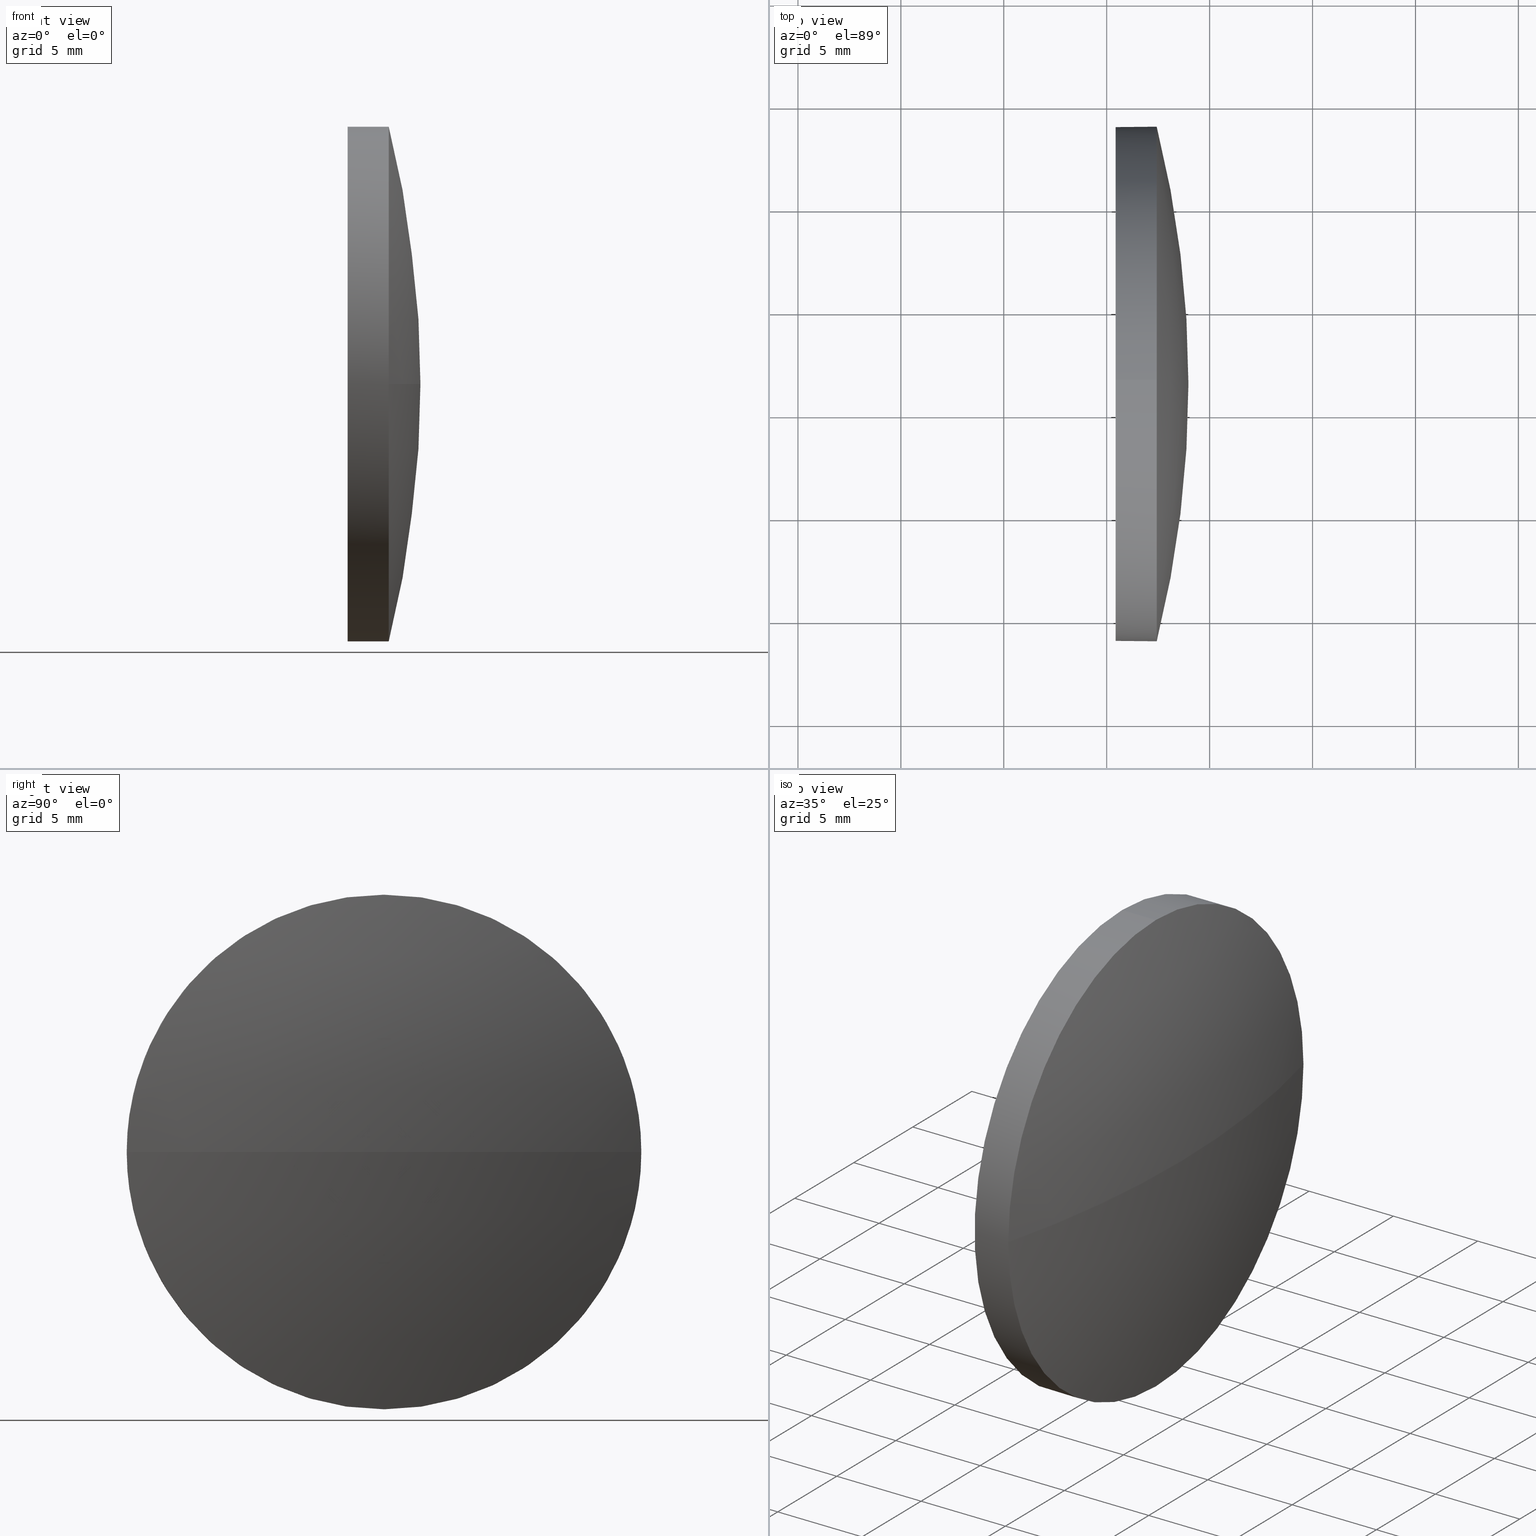
[diagram: canonical four-view strip — front | top / right | iso, engineering-drawing reading convention]
A machine part, canonical four-view strip (front | top / right | iso — engineering-drawing reading convention). The complete STEP part file that produces these views, byte-faithful:
ISO-10303-21;
HEADER;
FILE_DESCRIPTION (( 'STEP AP214' ),
    '1' );
FILE_NAME ('100044.STEP',
    '2019-04-29T08:28:07',
    ( '' ),
    ( '' ),
    'SwSTEP 2.0',
    'SolidWorks 2016',
    '' );
FILE_SCHEMA (( 'AUTOMOTIVE_DESIGN' ));
ENDSEC;

DATA;
#1 = ORIENTED_EDGE ( 'NONE', *, *, #94, .F. ) ;
#2 = EDGE_CURVE ( 'NONE', #172, #102, #81, .T. ) ;
#3 = CIRCLE ( 'NONE', #48, 12.50000000000000400 ) ;
#4 = ORIENTED_EDGE ( 'NONE', *, *, #120, .T. ) ;
#5 = PRODUCT_DEFINITION ( 'δ֪', '', #19, #141 ) ;
#6 = DIRECTION ( 'NONE',  ( -1.000000000000000000, -0.0000000000000000000, -0.0000000000000000000 ) ) ;
#7 = CARTESIAN_POINT ( 'NONE',  ( 413.9707510212638200, 36.41570885204537000, 0.0000000000000000000 ) ) ;
#8 = CIRCLE ( 'NONE', #9, 12.50000000000000400 ) ;
#9 = AXIS2_PLACEMENT_3D ( 'NONE', #165, #100, #36 ) ;
#10 = FILL_AREA_STYLE ('',( #178 ) ) ;
#11 = VERTEX_POINT ( 'NONE', #134 ) ;
#12 = EDGE_CURVE ( 'NONE', #167, #11, #3, .T. ) ;
#13 = FILL_AREA_STYLE_COLOUR ( '', #42 ) ;
#14 = APPLICATION_PROTOCOL_DEFINITION ( 'draft international standard', 'automotive_design', 1998, #76 ) ;
#15 = UNCERTAINTY_MEASURE_WITH_UNIT (LENGTH_MEASURE( 1.000000000000000100E-005 ), #138, 'distance_accuracy_value', 'NONE');
#16 = ORIENTED_EDGE ( 'NONE', *, *, #12, .F. ) ;
#17 = ADVANCED_FACE ( 'NONE', ( #130 ), #132, .F. ) ;
#18 = COLOUR_RGB ( '',1.000000000000000000, 1.000000000000000000, 1.000000000000000000 ) ;
#19 = PRODUCT_DEFINITION_FORMATION_WITH_SPECIFIED_SOURCE ( '�κ�', '', #158, .NOT_KNOWN. ) ;
#20 = CIRCLE ( 'NONE', #64, 12.50000000000000400 ) ;
#21 = STYLED_ITEM ( 'NONE', ( #105 ), #118 ) ;
#22 = FACE_OUTER_BOUND ( 'NONE', #136, .T. ) ;
#23 = AXIS2_PLACEMENT_3D ( 'NONE', #122, #67, #159 ) ;
#24 = SURFACE_SIDE_STYLE ('',( #114 ) ) ;
#25 = PRODUCT_RELATED_PRODUCT_CATEGORY ( 'part', '', ( #158 ) ) ;
#26 = DIRECTION ( 'NONE',  ( 0.0000000000000000000, 1.000000000000000000, 1.224646799147353200E-016 ) ) ;
#27 = ORIENTED_EDGE ( 'NONE', *, *, #113, .T. ) ;
#28 =( GEOMETRIC_REPRESENTATION_CONTEXT ( 3 ) GLOBAL_UNCERTAINTY_ASSIGNED_CONTEXT ( ( #78 ) ) GLOBAL_UNIT_ASSIGNED_CONTEXT ( ( #39, #56, #166 ) ) REPRESENTATION_CONTEXT ( 'NONE', 'WORKASPACE' ) );
#29 = LINE ( 'NONE', #35, #179 ) ;
#30 = ORIENTED_EDGE ( 'NONE', *, *, #2, .T. ) ;
#31 = DIRECTION ( 'NONE',  ( 0.0000000000000000000, 0.0000000000000000000, 1.000000000000000000 ) ) ;
#32 = DIRECTION ( 'NONE',  ( -1.000000000000000000, -0.0000000000000000000, -0.0000000000000000000 ) ) ;
#33 = DIRECTION ( 'NONE',  ( 0.0000000000000000000, 1.000000000000000000, 0.0000000000000000000 ) ) ;
#34 = PRESENTATION_STYLE_ASSIGNMENT (( #43 ) ) ;
#35 = CARTESIAN_POINT ( 'NONE',  ( 405.6887197793739100, 36.41570885204544100, -12.50000000000000400 ) ) ;
#36 = DIRECTION ( 'NONE',  ( 0.0000000000000000000, 0.0000000000000000000, 1.000000000000000000 ) ) ;
#37 = FACE_OUTER_BOUND ( 'NONE', #170, .T. ) ;
#38 = EDGE_CURVE ( 'NONE', #172, #61, #137, .T. ) ;
#39 =( LENGTH_UNIT ( ) NAMED_UNIT ( * ) SI_UNIT ( .MILLI., .METRE. ) );
#40 = ORIENTED_EDGE ( 'NONE', *, *, #174, .T. ) ;
#41 = AXIS2_PLACEMENT_3D ( 'NONE', #147, #72, #33 ) ;
#42 = COLOUR_RGB ( '',1.000000000000000000, 1.000000000000000000, 1.000000000000000000 ) ;
#43 = SURFACE_STYLE_USAGE ( .BOTH. , #127 ) ;
#44 = SPHERICAL_SURFACE ( 'NONE', #41, 51.50051948051955000 ) ;
#45 = ORIENTED_EDGE ( 'NONE', *, *, #186, .T. ) ;
#46 = DIRECTION ( 'NONE',  ( -1.000000000000000000, -0.0000000000000000000, -0.0000000000000000000 ) ) ;
#47 = ORIENTED_EDGE ( 'NONE', *, *, #113, .F. ) ;
#48 = AXIS2_PLACEMENT_3D ( 'NONE', #145, #97, #31 ) ;
#49 = CIRCLE ( 'NONE', #85, 12.50000000000000400 ) ;
#50 = CARTESIAN_POINT ( 'NONE',  ( 412.4307510212638000, 48.91570885204540500, 0.0000000000000000000 ) ) ;
#51 = AXIS2_PLACEMENT_3D ( 'NONE', #99, #135, #112 ) ;
#52 = CARTESIAN_POINT ( 'NONE',  ( 410.4307510212638000, 36.41570885204544100, 12.50000000000000400 ) ) ;
#53 = EDGE_CURVE ( 'NONE', #143, #102, #96, .T. ) ;
#54 = DIRECTION ( 'NONE',  ( -1.000000000000000000, -0.0000000000000000000, -0.0000000000000000000 ) ) ;
#55 = EDGE_LOOP ( 'NONE', ( #4, #144 ) ) ;
#56 =( NAMED_UNIT ( * ) PLANE_ANGLE_UNIT ( ) SI_UNIT ( $, .RADIAN. ) );
#57 = CLOSED_SHELL ( 'NONE', ( #152, #93, #63, #142, #17 ) ) ;
#58 = FACE_OUTER_BOUND ( 'NONE', #86, .T. ) ;
#59 =( NAMED_UNIT ( * ) SI_UNIT ( $, .STERADIAN. ) SOLID_ANGLE_UNIT ( ) );
#60 = CARTESIAN_POINT ( 'NONE',  ( 0.0000000000000000000, 0.0000000000000000000, 0.0000000000000000000 ) ) ;
#61 = VERTEX_POINT ( 'NONE', #50 ) ;
#62 = DIRECTION ( 'NONE',  ( 0.0000000000000000000, 0.0000000000000000000, 1.000000000000000000 ) ) ;
#63 = ADVANCED_FACE ( 'NONE', ( #68 ), #148, .T. ) ;
#64 = AXIS2_PLACEMENT_3D ( 'NONE', #131, #46, #164 ) ;
#65 = AXIS2_PLACEMENT_3D ( 'NONE', #71, #162, #83 ) ;
#66 = ORIENTED_EDGE ( 'NONE', *, *, #101, .F. ) ;
#67 = DIRECTION ( 'NONE',  ( 1.000000000000000000, 0.0000000000000000000, 0.0000000000000000000 ) ) ;
#68 = FACE_OUTER_BOUND ( 'NONE', #88, .T. ) ;
#69 = CYLINDRICAL_SURFACE ( 'NONE', #133, 12.50000000000000400 ) ;
#70 = PRODUCT_DEFINITION_SHAPE ( 'NONE', 'NONE',  #5 ) ;
#71 = CARTESIAN_POINT ( 'NONE',  ( 410.4307510212638000, 36.41570885204544100, 0.0000000000000000000 ) ) ;
#72 = DIRECTION ( 'NONE',  ( -0.0000000000000000000, 0.0000000000000000000, -1.000000000000000000 ) ) ;
#73 = ORIENTED_EDGE ( 'NONE', *, *, #2, .F. ) ;
#74 = AXIS2_PLACEMENT_3D ( 'NONE', #60, #169, #183 ) ;
#75 = AXIS2_PLACEMENT_3D ( 'NONE', #182, #171, #26 ) ;
#76 = APPLICATION_CONTEXT ( 'automotive_design' ) ;
#77 = DIRECTION ( 'NONE',  ( -1.000000000000000000, -0.0000000000000000000, -0.0000000000000000000 ) ) ;
#78 = UNCERTAINTY_MEASURE_WITH_UNIT (LENGTH_MEASURE( 1.000000000000000100E-005 ), #39, 'distance_accuracy_value', 'NONE');
#79 = VERTEX_POINT ( 'NONE', #7 ) ;
#80 = ADVANCED_BREP_SHAPE_REPRESENTATION ( '100044', ( #118, #74 ), #121 ) ;
#81 = LINE ( 'NONE', #82, #184 ) ;
#82 = CARTESIAN_POINT ( 'NONE',  ( 405.6887197793739100, 36.41570885204544100, 12.50000000000000400 ) ) ;
#83 = DIRECTION ( 'NONE',  ( 0.0000000000000000000, 0.0000000000000000000, 1.000000000000000000 ) ) ;
#84 =( GEOMETRIC_REPRESENTATION_CONTEXT ( 3 ) GLOBAL_UNCERTAINTY_ASSIGNED_CONTEXT ( ( #149 ) ) GLOBAL_UNIT_ASSIGNED_CONTEXT ( ( #168, #151, #59 ) ) REPRESENTATION_CONTEXT ( 'NONE', 'WORKASPACE' ) );
#85 = AXIS2_PLACEMENT_3D ( 'NONE', #117, #77, #62 ) ;
#86 = EDGE_LOOP ( 'NONE', ( #40, #116, #129, #73, #107 ) ) ;
#87 = DIRECTION ( 'NONE',  ( 0.0000000000000000000, 0.0000000000000000000, 1.000000000000000000 ) ) ;
#88 = EDGE_LOOP ( 'NONE', ( #140, #153, #180, #47 ) ) ;
#89 = PRESENTATION_LAYER_ASSIGNMENT (  '', '', ( #21 ) ) ;
#90 = APPLICATION_PROTOCOL_DEFINITION ( 'draft international standard', 'automotive_design', 1998, #92 ) ;
#91 = PRODUCT_CONTEXT ( 'NONE', #76, 'mechanical' ) ;
#92 = APPLICATION_CONTEXT ( 'automotive_design' ) ;
#93 = ADVANCED_FACE ( 'NONE', ( #37 ), #44, .T. ) ;
#94 = EDGE_CURVE ( 'NONE', #79, #61, #119, .T. ) ;
#95 = ORIENTED_EDGE ( 'NONE', *, *, #53, .F. ) ;
#96 = CIRCLE ( 'NONE', #65, 12.50000000000000400 ) ;
#97 = DIRECTION ( 'NONE',  ( -1.000000000000000000, -0.0000000000000000000, -0.0000000000000000000 ) ) ;
#98 = DIRECTION ( 'NONE',  ( 0.0000000000000000000, 0.0000000000000000000, 1.000000000000000000 ) ) ;
#99 = CARTESIAN_POINT ( 'NONE',  ( 362.4702315407442400, 36.41570885204537000, 0.0000000000000000000 ) ) ;
#100 = DIRECTION ( 'NONE',  ( -1.000000000000000000, -0.0000000000000000000, -0.0000000000000000000 ) ) ;
#101 = EDGE_CURVE ( 'NONE', #167, #143, #29, .T. ) ;
#102 = VERTEX_POINT ( 'NONE', #52 ) ;
#103 = FILL_AREA_STYLE ('',( #13 ) ) ;
#104 = STYLED_ITEM ( 'NONE', ( #34 ), #80 ) ;
#105 = PRESENTATION_STYLE_ASSIGNMENT (( #126 ) ) ;
#106 = CIRCLE ( 'NONE', #75, 51.50051948051955000 ) ;
#107 = ORIENTED_EDGE ( 'NONE', *, *, #38, .T. ) ;
#108 = AXIS2_PLACEMENT_3D ( 'NONE', #124, #32, #98 ) ;
#109 = DIRECTION ( 'NONE',  ( -1.000000000000000000, -0.0000000000000000000, -0.0000000000000000000 ) ) ;
#110 = DIRECTION ( 'NONE',  ( 0.0000000000000000000, 1.000000000000000000, 0.0000000000000000000 ) ) ;
#111 = CARTESIAN_POINT ( 'NONE',  ( 362.4702315407442400, 36.41570885204537000, 0.0000000000000000000 ) ) ;
#112 = DIRECTION ( 'NONE',  ( 1.000000000000000000, 0.0000000000000000000, 0.0000000000000000000 ) ) ;
#113 = EDGE_CURVE ( 'NONE', #11, #172, #8, .T. ) ;
#114 = SURFACE_STYLE_FILL_AREA ( #10 ) ;
#115 = DIRECTION ( 'NONE',  ( -1.000000000000000000, -0.0000000000000000000, -0.0000000000000000000 ) ) ;
#116 = ORIENTED_EDGE ( 'NONE', *, *, #101, .T. ) ;
#117 = CARTESIAN_POINT ( 'NONE',  ( 412.4307510212638000, 36.41570885204544100, 0.0000000000000000000 ) ) ;
#118 = MANIFOLD_SOLID_BREP ( '��ת1', #57 ) ;
#119 = CIRCLE ( 'NONE', #51, 51.50051948051953600 ) ;
#120 = EDGE_CURVE ( 'NONE', #102, #143, #20, .T. ) ;
#121 =( GEOMETRIC_REPRESENTATION_CONTEXT ( 3 ) GLOBAL_UNCERTAINTY_ASSIGNED_CONTEXT ( ( #15 ) ) GLOBAL_UNIT_ASSIGNED_CONTEXT ( ( #138, #156, #185 ) ) REPRESENTATION_CONTEXT ( 'NONE', 'WORKASPACE' ) );
#122 = CARTESIAN_POINT ( 'NONE',  ( 410.4307510212638000, 36.41570885204543400, 0.0000000000000000000 ) ) ;
#123 = MECHANICAL_DESIGN_GEOMETRIC_PRESENTATION_REPRESENTATION (  '', ( #21 ), #28 ) ;
#124 = CARTESIAN_POINT ( 'NONE',  ( 412.4307510212638000, 36.41570885204544100, 0.0000000000000000000 ) ) ;
#125 = SHAPE_DEFINITION_REPRESENTATION ( #70, #80 ) ;
#126 = SURFACE_STYLE_USAGE ( .BOTH. , #24 ) ;
#127 = SURFACE_SIDE_STYLE ('',( #146 ) ) ;
#128 = PRESENTATION_LAYER_ASSIGNMENT (  '', '', ( #104 ) ) ;
#129 = ORIENTED_EDGE ( 'NONE', *, *, #120, .F. ) ;
#130 = FACE_OUTER_BOUND ( 'NONE', #55, .T. ) ;
#131 = CARTESIAN_POINT ( 'NONE',  ( 410.4307510212638000, 36.41570885204544100, 0.0000000000000000000 ) ) ;
#132 = PLANE ( 'NONE',  #23 ) ;
#133 = AXIS2_PLACEMENT_3D ( 'NONE', #161, #6, #176 ) ;
#134 = CARTESIAN_POINT ( 'NONE',  ( 412.4307510212638000, 23.91570885204540200, -1.530808498934187800E-015 ) ) ;
#135 = DIRECTION ( 'NONE',  ( -0.0000000000000000000, 0.0000000000000000000, 1.000000000000000000 ) ) ;
#136 = EDGE_LOOP ( 'NONE', ( #66, #155, #27, #30, #95 ) ) ;
#137 = CIRCLE ( 'NONE', #108, 12.50000000000000400 ) ;
#138 =( LENGTH_UNIT ( ) NAMED_UNIT ( * ) SI_UNIT ( .MILLI., .METRE. ) );
#139 = AXIS2_PLACEMENT_3D ( 'NONE', #111, #173, #110 ) ;
#140 = ORIENTED_EDGE ( 'NONE', *, *, #186, .F. ) ;
#141 = PRODUCT_DEFINITION_CONTEXT ( 'detailed design', #92, 'design' ) ;
#142 = ADVANCED_FACE ( 'NONE', ( #22 ), #69, .T. ) ;
#143 = VERTEX_POINT ( 'NONE', #163 ) ;
#144 = ORIENTED_EDGE ( 'NONE', *, *, #53, .T. ) ;
#145 = CARTESIAN_POINT ( 'NONE',  ( 412.4307510212638000, 36.41570885204544100, 0.0000000000000000000 ) ) ;
#146 = SURFACE_STYLE_FILL_AREA ( #103 ) ;
#147 = CARTESIAN_POINT ( 'NONE',  ( 362.4702315407442400, 36.41570885204537000, 0.0000000000000000000 ) ) ;
#148 = SPHERICAL_SURFACE ( 'NONE', #139, 51.50051948051955000 ) ;
#149 = UNCERTAINTY_MEASURE_WITH_UNIT (LENGTH_MEASURE( 1.000000000000000100E-005 ), #168, 'distance_accuracy_value', 'NONE');
#150 = AXIS2_PLACEMENT_3D ( 'NONE', #177, #115, #87 ) ;
#151 =( NAMED_UNIT ( * ) PLANE_ANGLE_UNIT ( ) SI_UNIT ( $, .RADIAN. ) );
#152 = ADVANCED_FACE ( 'NONE', ( #58 ), #154, .T. ) ;
#153 = ORIENTED_EDGE ( 'NONE', *, *, #94, .T. ) ;
#154 = CYLINDRICAL_SURFACE ( 'NONE', #150, 12.50000000000000400 ) ;
#155 = ORIENTED_EDGE ( 'NONE', *, *, #12, .T. ) ;
#156 =( NAMED_UNIT ( * ) PLANE_ANGLE_UNIT ( ) SI_UNIT ( $, .RADIAN. ) );
#157 = CARTESIAN_POINT ( 'NONE',  ( 412.4307510212638000, 36.41570885204544100, 12.50000000000000400 ) ) ;
#158 = PRODUCT ( '100044', '100044', '', ( #91 ) ) ;
#159 = DIRECTION ( 'NONE',  ( 0.0000000000000000000, 0.0000000000000000000, -1.000000000000000000 ) ) ;
#160 = ORIENTED_EDGE ( 'NONE', *, *, #174, .F. ) ;
#161 = CARTESIAN_POINT ( 'NONE',  ( 405.6887197793739100, 36.41570885204544100, 0.0000000000000000000 ) ) ;
#162 = DIRECTION ( 'NONE',  ( -1.000000000000000000, -0.0000000000000000000, -0.0000000000000000000 ) ) ;
#163 = CARTESIAN_POINT ( 'NONE',  ( 410.4307510212638000, 36.41570885204544100, -12.50000000000000400 ) ) ;
#164 = DIRECTION ( 'NONE',  ( 0.0000000000000000000, 0.0000000000000000000, 1.000000000000000000 ) ) ;
#165 = CARTESIAN_POINT ( 'NONE',  ( 412.4307510212638000, 36.41570885204544100, 0.0000000000000000000 ) ) ;
#166 =( NAMED_UNIT ( * ) SI_UNIT ( $, .STERADIAN. ) SOLID_ANGLE_UNIT ( ) );
#167 = VERTEX_POINT ( 'NONE', #175 ) ;
#168 =( LENGTH_UNIT ( ) NAMED_UNIT ( * ) SI_UNIT ( .MILLI., .METRE. ) );
#169 = DIRECTION ( 'NONE',  ( 0.0000000000000000000, 0.0000000000000000000, 1.000000000000000000 ) ) ;
#170 = EDGE_LOOP ( 'NONE', ( #1, #45, #16, #160 ) ) ;
#171 = DIRECTION ( 'NONE',  ( 0.0000000000000000000, 1.224646799147353200E-016, -1.000000000000000000 ) ) ;
#172 = VERTEX_POINT ( 'NONE', #157 ) ;
#173 = DIRECTION ( 'NONE',  ( -0.0000000000000000000, 0.0000000000000000000, -1.000000000000000000 ) ) ;
#174 = EDGE_CURVE ( 'NONE', #61, #167, #49, .T. ) ;
#175 = CARTESIAN_POINT ( 'NONE',  ( 412.4307510212638000, 36.41570885204544100, -12.50000000000000400 ) ) ;
#176 = DIRECTION ( 'NONE',  ( 0.0000000000000000000, 0.0000000000000000000, 1.000000000000000000 ) ) ;
#177 = CARTESIAN_POINT ( 'NONE',  ( 405.6887197793739100, 36.41570885204544100, 0.0000000000000000000 ) ) ;
#178 = FILL_AREA_STYLE_COLOUR ( '', #18 ) ;
#179 = VECTOR ( 'NONE', #54, 1000.000000000000000 ) ;
#180 = ORIENTED_EDGE ( 'NONE', *, *, #38, .F. ) ;
#181 = MECHANICAL_DESIGN_GEOMETRIC_PRESENTATION_REPRESENTATION (  '', ( #104 ), #84 ) ;
#182 = CARTESIAN_POINT ( 'NONE',  ( 362.4702315407442400, 36.41570885204537000, 0.0000000000000000000 ) ) ;
#183 = DIRECTION ( 'NONE',  ( 1.000000000000000000, 0.0000000000000000000, 0.0000000000000000000 ) ) ;
#184 = VECTOR ( 'NONE', #109, 1000.000000000000000 ) ;
#185 =( NAMED_UNIT ( * ) SI_UNIT ( $, .STERADIAN. ) SOLID_ANGLE_UNIT ( ) );
#186 = EDGE_CURVE ( 'NONE', #79, #11, #106, .T. ) ;
ENDSEC;
END-ISO-10303-21;
